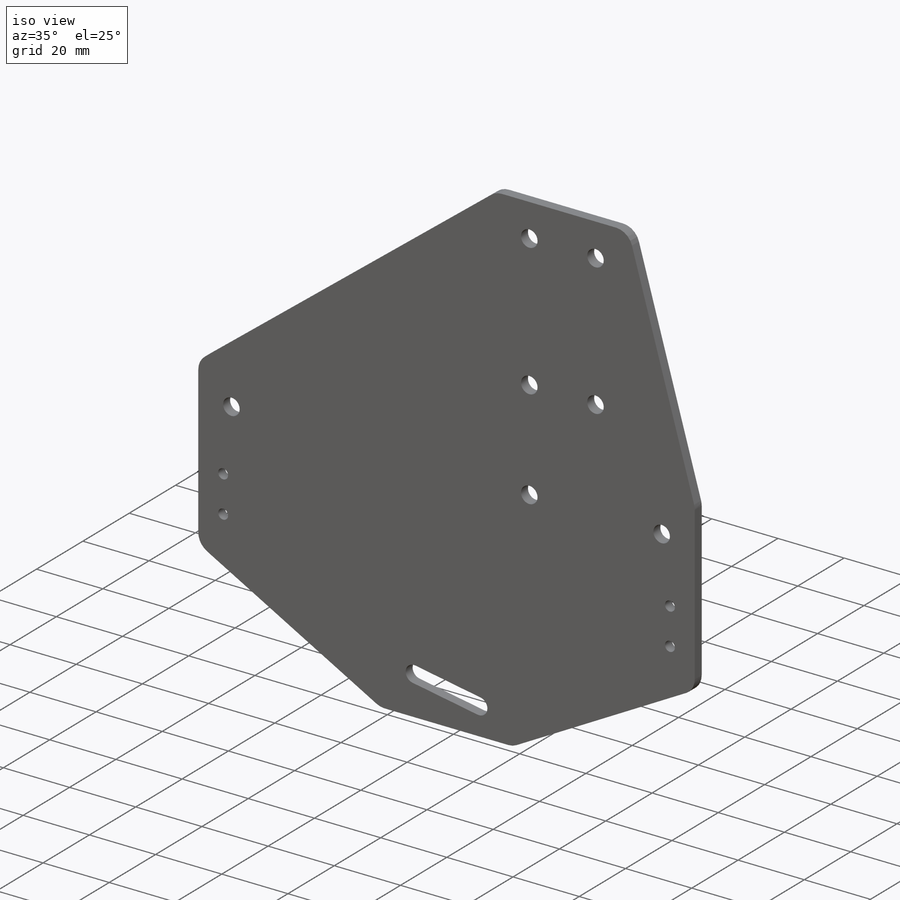
[diagram: iso view]
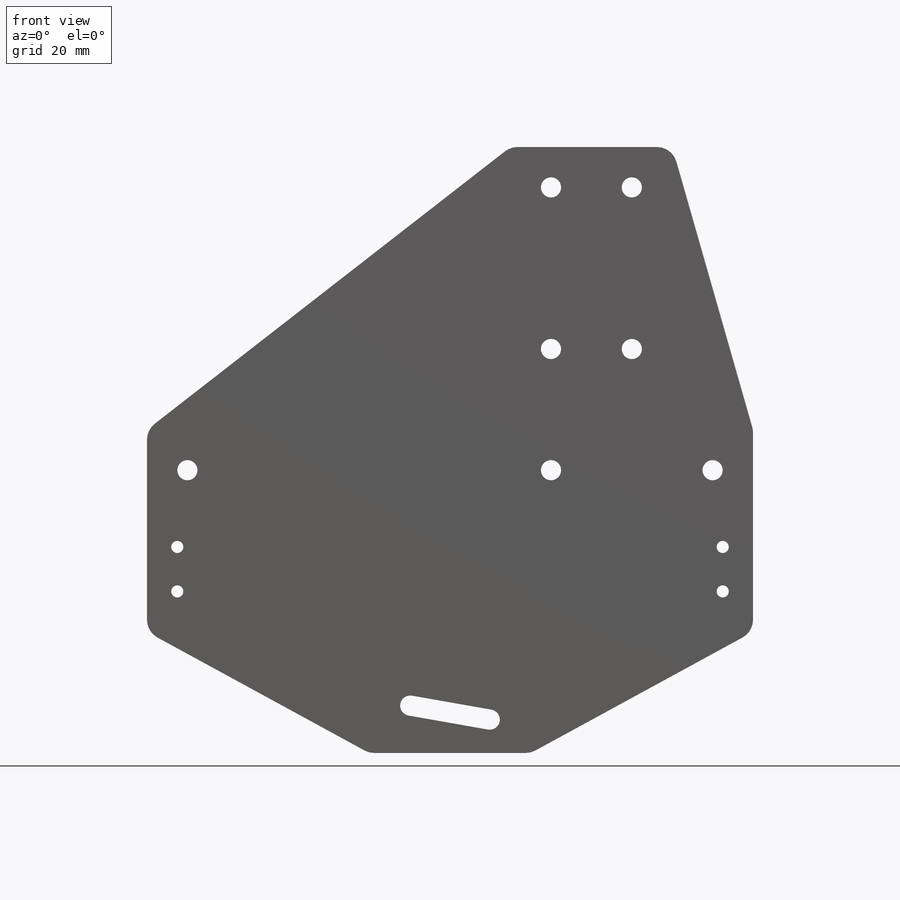
[diagram: front view]
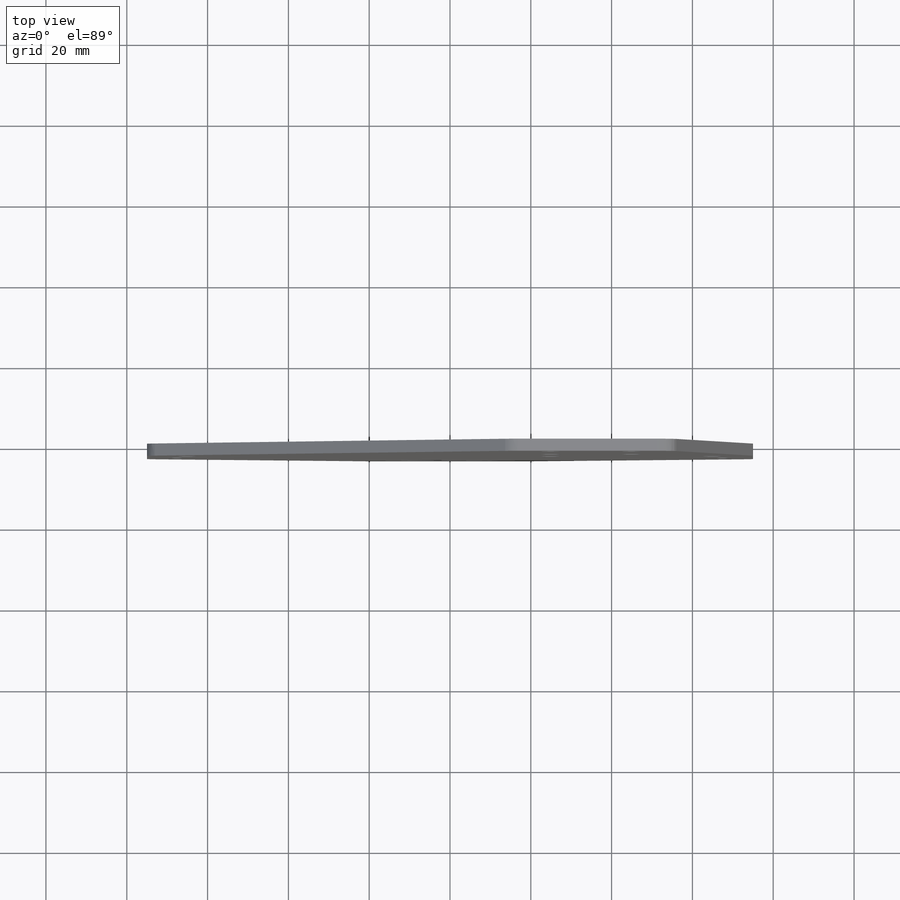
[diagram: top view]
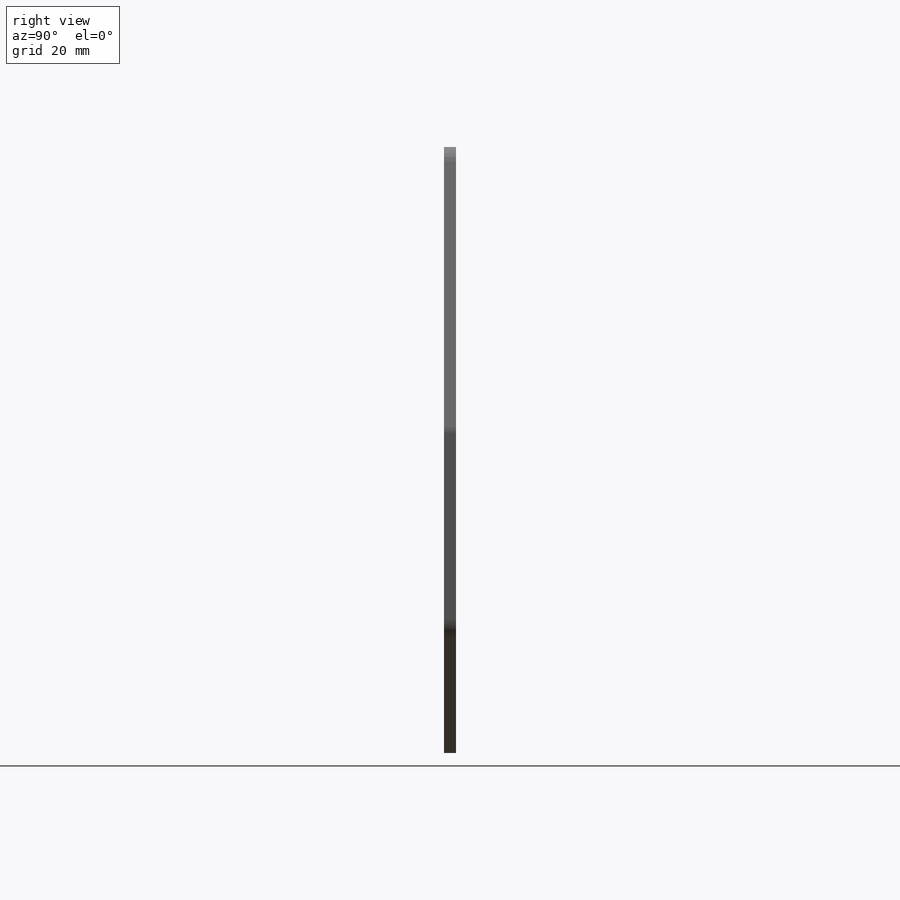
[diagram: right view]
SOLIDWORKS PART (.sldprt)
format: sldprt  version: not decoded by parser v0  size: 260,608 bytes
history: native  units: mm
features: sketch x4, cut_extrude x3, material x1, extrude x1, pattern_linear x1, fillet x1 (+13 scaffold rows collapsed)
feature tree (24):
  scaffold x13  (default folders/planes/origin — collapsed)
  material  "Material <not specified>"
  sketch  "Sketch1"  dims[c1.D1=150.0mm c1.D2=60.0mm c1.D3=60.0mm c1.D4=150.0mm c2.D2=40.0mm c2.D3=80.0mm c2.D5=20.0mm]
  extrude  "Boss-Extrude1"  Depth=3mm
  sketch  "Sketch2"  dims[c1.D1=5.0mm c1.D2=5.0mm c1.D3=5.0mm c1.D4=5.0mm c2.D3=5.0mm c2.D4=5.0mm c2.D5=5.0mm c3.D4=5.0mm c3.D5=2.5mm c3.D9=3.0mm c3.D10=3.0mm c3.D11=3.0mm c3.D2=5.0mm c3.D12=3.0mm c4.D2=30.0mm c4.D3=10.0mm c4.D4=30.0mm c5.D3=10.0mm c5.D4=25.0mm c5.D5=10.0mm c6.D4=40.0mm c6.D5=10.0mm c6.D6=~18.283334mm c7.D6=10.0deg c7.D7=10.0mm c7.D8=20.0mm c7.D10=7.5mm c7.D11=11.0mm c7.D2=70.0mm c7.D12=40.0mm]
  cut_extrude  "Cut-Extrude1"  [1 undecoded]
  sketch  "Sketch3"  dims[c1.D1=~16.484431mm c1.D2=5.0mm c1.D3=5.0mm c2.D1=10.0mm c2.D3=10.0mm]
  cut_extrude  "Cut-Extrude2"  [1 undecoded]
  pattern_linear  "LPattern1"  Count1=2 Count2=2 Spacing1=20mm Spacing2=40mm
  sketch  "Sketch4"  dims[D1=50.0mm D2=50.0mm D3=20.0mm D4=20.0mm]
  cut_extrude  "Cut-Extrude3"  [1 undecoded]
  fillet  "Fillet1"  Radius=5mm
decode coverage: 7 of 10 modeling features carry decoded parameters
note: ~ marks probable driven/reference dimensions
note: 3 parameter values undecoded
summary: no parameter record found for 3 features
note: suppression state not decoded; provenance and decode notes live in map.json
